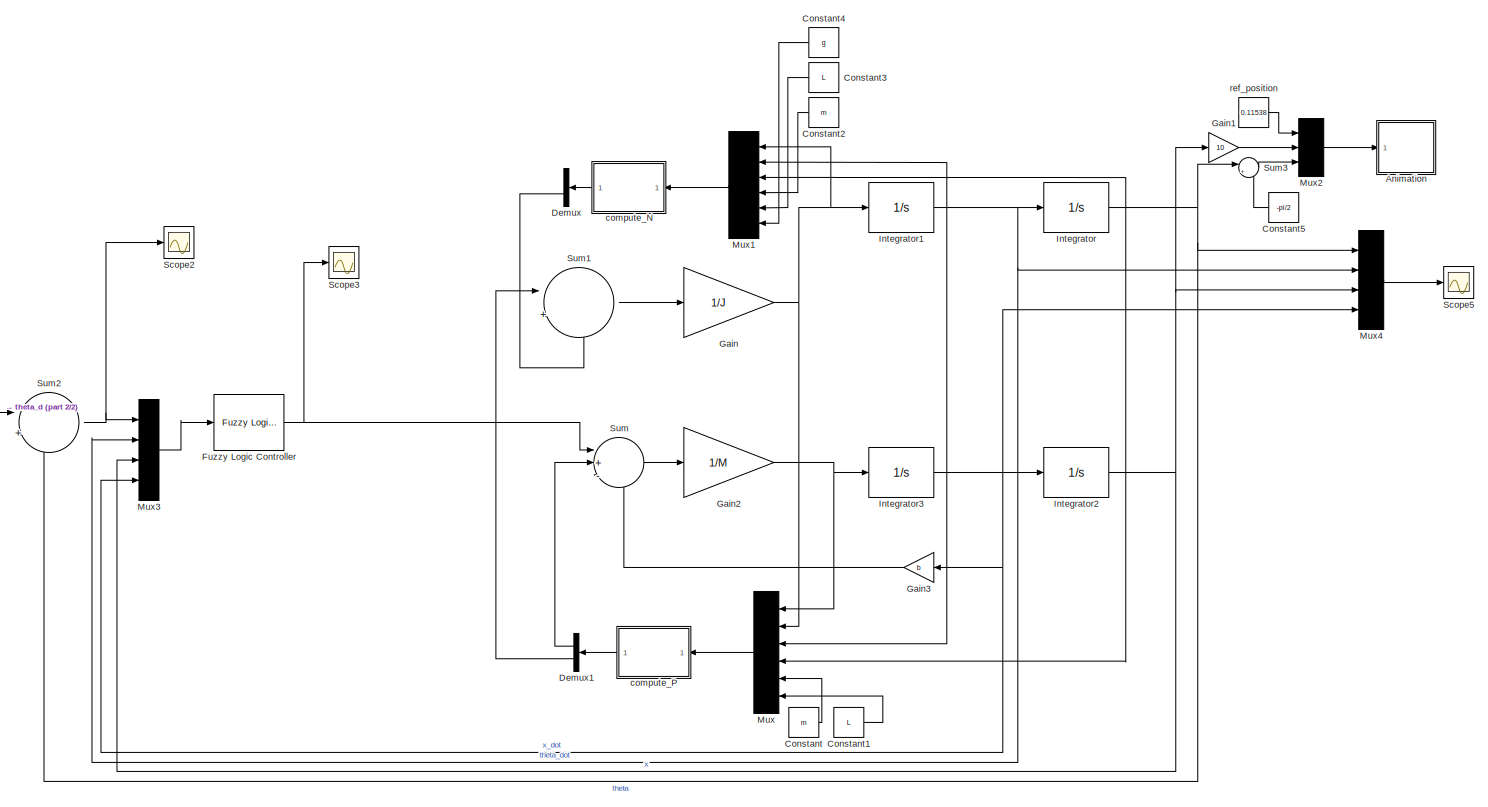
[diagram: root canvas - part 1/2, most of the canvas]
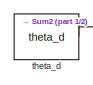
[diagram: root canvas - part 2/2, middle left region]
MODEL slx_86cd8eb57947
KIND model
CONFIG AbsTol = auto
CONFIG EnableMultiTasking = off
CONFIG FixedStep = 0.01
CONFIG MaxStep = auto
CONFIG MinStep = auto
CONFIG RelTol = 1e-3
CONFIG SampleTimeConstraint = Unconstrained
CONFIG SolverName = ode4
CONFIG StartTime = 0.0
CONFIG StopTime = 30
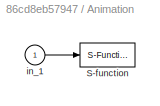
BLOCK [SubSystem] Animation
  Ports = [1]
  RequestExecContextInheritance = off
BLOCK [S-Function] Animation/S-function
  DeleteFcn = pendan([],[],[],'DeleteBlock');
  EnableBusSupport = off
  FunctionName = pendan
  Parameters = RefBlock
  Ports = [1]
  SFcnIsStateOwnerBlock = off
  SFunctionDeploymentMode = off
BLOCK [Inport] Animation/in_1
BLOCK [Constant] Constant
  Value = m
BLOCK [Constant] Constant1
  Value = L
BLOCK [Constant] Constant2
  Value = m
BLOCK [Constant] Constant3
  Value = L
BLOCK [Constant] Constant4
  Value = g
BLOCK [Constant] Constant5
  Value = -pi/2
BLOCK [Demux] Demux
  Outputs = 2
  Ports = [1, 2]
BLOCK [Demux] Demux1
  Outputs = 2
  Ports = [1, 2]
BLOCK [Reference] Fuzzy Logic Controller  REF=fuzblock/Fuzzy Logic   (lib defined in mdl_858b3b3e7478)
Controller
  Ports = [1, 1]
  SourceBlock = fuzblock/Fuzzy Logic \nController
  SourceProductBaseCode = FL
  SourceType = Fuzzy Inference System
BLOCK [Gain] Gain
  Gain = 1/J
BLOCK [Gain] Gain1
  Gain = 10
BLOCK [Gain] Gain2
  Gain = 1/M
BLOCK [Gain] Gain3
  Gain = b
BLOCK [Integrator] Integrator
  InitialCondition = pi/2-pi/20
  Ports = [1, 1]
BLOCK [Integrator] Integrator1
  Ports = [1, 1]
BLOCK [Integrator] Integrator2
  Ports = [1, 1]
BLOCK [Integrator] Integrator3
  Ports = [1, 1]
BLOCK [Mux] Mux
  DisplayOption = bar
  Inputs = 6
  Ports = [6, 1]
BLOCK [Mux] Mux1
  DisplayOption = bar
  Inputs = 6
  Ports = [6, 1]
BLOCK [Mux] Mux2
  DisplayOption = bar
  Inputs = 3
  Ports = [3, 1]
BLOCK [Mux] Mux3
  DisplayOption = bar
  Ports = [4, 1]
BLOCK [Mux] Mux4
  DisplayOption = bar
  Ports = [4, 1]
BLOCK [Scope] Scope2
  Floating = off
  NumInputPorts = 1
  Ports = [1]
  ScopeSpecificationString = Simulink.scopes.TimeScopeBlockCfg('CurrentConfiguration', extmgr.ConfigurationSet(extmgr.Configuration('Core','General UI',true,'FigureColor',[1 1 1]),extmgr.Configuration('Core','Source UI',true),extmgr.Configuration('Sources','WiredSimulink',true,'DataLoggingVariableName','ScopeData2'),extmgr.Configuration('Visuals','Time Domain',true,'SerializedDisplays',{struct('MinYLimReal','-0.0841','MaxYLim...<+2364ch>
BLOCK [Scope] Scope3
  Floating = off
  NumInputPorts = 1
  Ports = [1]
  ScopeSpecificationString = Simulink.scopes.TimeScopeBlockCfg('CurrentConfiguration', extmgr.ConfigurationSet(extmgr.Configuration('Core','General UI',true,'FigureColor',[1 1 1]),extmgr.Configuration('Core','Source UI',true),extmgr.Configuration('Sources','WiredSimulink',true,'DataLoggingVariableName','ScopeData3'),extmgr.Configuration('Visuals','Time Domain',true,'SerializedDisplays',{struct('MinYLimReal','-1.85134','MaxYLi...<+2381ch>
BLOCK [Scope] Scope5
  Floating = off
  NumInputPorts = 1
  Ports = [1]
  ScopeSpecificationString = Simulink.scopes.TimeScopeBlockCfg('CurrentConfiguration', extmgr.ConfigurationSet(extmgr.Configuration('Core','General UI',true,'FigureColor',[1 1 1]),extmgr.Configuration('Core','Source UI',true),extmgr.Configuration('Sources','WiredSimulink',true,'DataLoggingVariableName','ScopeData2'),extmgr.Configuration('Visuals','Time Domain',true,'SerializedDisplays',{struct('MinYLimReal','-0.57339','MaxYLi...<+2391ch>
BLOCK [Sum] Sum
  Inputs = |+--
  Ports = [3, 1]
BLOCK [Sum] Sum1
  Inputs = |+-
  Ports = [2, 1]
BLOCK [Sum] Sum2
  Inputs = |+-
  Ports = [2, 1]
BLOCK [Sum] Sum3
  Inputs = |++
  Ports = [2, 1]
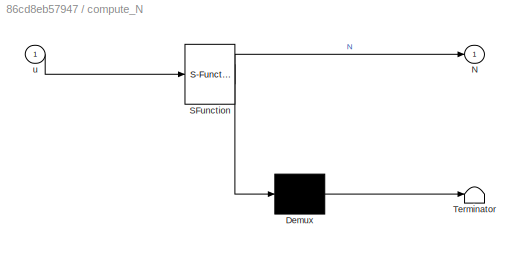
BLOCK [SubSystem] compute_N
  ErrorFcn = Stateflow.Translate.translate
  PermitHierarchicalResolution = ExplicitOnly
  Ports = [1, 1]
  RequestExecContextInheritance = off
  SFBlockType = MATLAB Function
  TreatAsAtomicUnit = on
BLOCK [Demux] compute_N/ Demux 
  Outputs = 1
  Ports = [1, 1]
BLOCK [S-Function] compute_N/ SFunction 
  EnableBusSupport = on
  FunctionName = sf_sfun
  PortCounts = [1 2]
  Ports = [1, 2]
  SFcnIsStateOwnerBlock = off
  SFunctionDeploymentMode = off
  Tag = Stateflow S-Function 1
BLOCK [Terminator] compute_N/ Terminator 
BLOCK [Outport] compute_N/N
BLOCK [Inport] compute_N/u
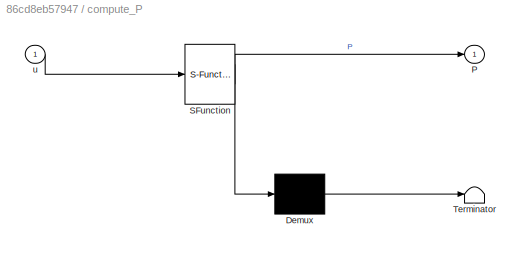
BLOCK [SubSystem] compute_P
  ErrorFcn = Stateflow.Translate.translate
  PermitHierarchicalResolution = ExplicitOnly
  Ports = [1, 1]
  RequestExecContextInheritance = off
  SFBlockType = MATLAB Function
  TreatAsAtomicUnit = on
BLOCK [Demux] compute_P/ Demux 
  Outputs = 1
  Ports = [1, 1]
BLOCK [S-Function] compute_P/ SFunction 
  EnableBusSupport = on
  FunctionName = sf_sfun
  PortCounts = [1 2]
  Ports = [1, 2]
  SFcnIsStateOwnerBlock = off
  SFunctionDeploymentMode = off
  Tag = Stateflow S-Function 2
BLOCK [Terminator] compute_P/ Terminator 
BLOCK [Outport] compute_P/P
BLOCK [Inport] compute_P/u
BLOCK [Constant] ref_position
  Value = 0.11538
BLOCK [Constant] theta_d
  Value = theta_d
LINE Animation/in_1:1 -> Animation/S-function:1
LINE Constant1:1 -> Mux:6
LINE Constant2:1 -> Mux1:4
LINE Constant3:1 -> Mux1:5
LINE Constant4:1 -> Mux1:6
LINE Constant5:1 -> Sum3:2
LINE Constant:1 -> Mux:5
LINE Demux1:1 -> Sum:2
LINE Demux1:2 -> Sum1:1
LINE Demux:2 -> Sum1:2
NET Fuzzy Logic Controller:1 -> Scope3:1, Sum:1
LINE Gain1:1 -> Mux2:2
NET Gain2:1 -> Integrator3:1, Mux:1
LINE Gain3:1 -> Sum:3
NET Gain:1 -> Integrator1:1, Mux1:1, Mux:2
NET Integrator1:1 -> Integrator:1, Mux1:2, Mux3:2, Mux4:2, Mux:3
NET Integrator2:1 -> Gain1:1, Mux3:3, Mux4:3
NET Integrator3:1 -> Gain3:1, Integrator2:1, Mux3:4, Mux4:4
NET Integrator:1 -> Mux1:3, Mux4:1, Mux:4, Sum2:2, Sum3:1
LINE Mux1:1 -> compute_N:1
LINE Mux2:1 -> Animation:1
LINE Mux3:1 -> Fuzzy Logic Controller:1
LINE Mux4:1 -> Scope5:1
LINE Mux:1 -> compute_P:1
LINE Sum1:1 -> Gain:1
NET Sum2:1 -> Mux3:1, Scope2:1
LINE Sum3:1 -> Mux2:3
LINE Sum:1 -> Gain2:1
LINE compute_N:1 -> Demux:1
LINE compute_P:1 -> Demux1:1
LINE ref_position:1 -> Mux2:1
LINE theta_d:1 -> Sum2:1
note: NET lines group one-source signal fan-out (src -> all destinations, sorted); 1:1 wires keep LINE
CHART compute_P states=1 transitions=1
  STATE_LABEL 'eML_blk_kernel()'
  STATE_LABEL 'SCRIPT:\nfunction P = fcn(u)\nP =zeros(2,1);\nx_2dot= u(1);\ntheta_2dot= u(2);\ntheta_dot= u(3);\ntheta= u(4);\nm= u(5);\nL= u(6);\nP(1)= m*(u(1)-L*u(2)*sin(u(4))-L*u(3)^2*cos(u(4)));\nP(2)= P(1)*L*sin(u(4));\nP=P;\n\n\n'
CHART compute_N states=1 transitions=1
  STATE_LABEL 'eML_blk_kernel()'
  STATE_LABEL 'SCRIPT:\nfunction N = fcn(u)\nN= zeros(2,1);\ntheta_2dot= u(1);\ntheta_dot= u(2);\ntheta= u(3);\nm= u(4);\nL= u(5);\ng= u(6);\nN(1)= m*(L*u(1)*cos(u(3))- L*u(2)^2*sin(u(3)) + g);\nN(2)= N(1)*L*cos(u(3));\nN= N;\n'
CHART  states=0 transitions=0
CHART  states=0 transitions=0
